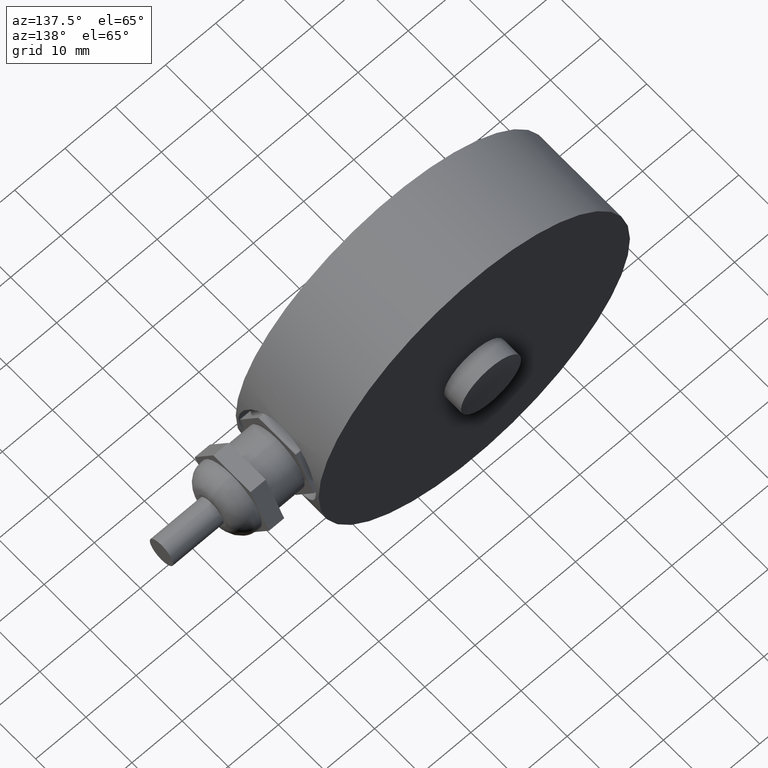
[diagram: clean part render]
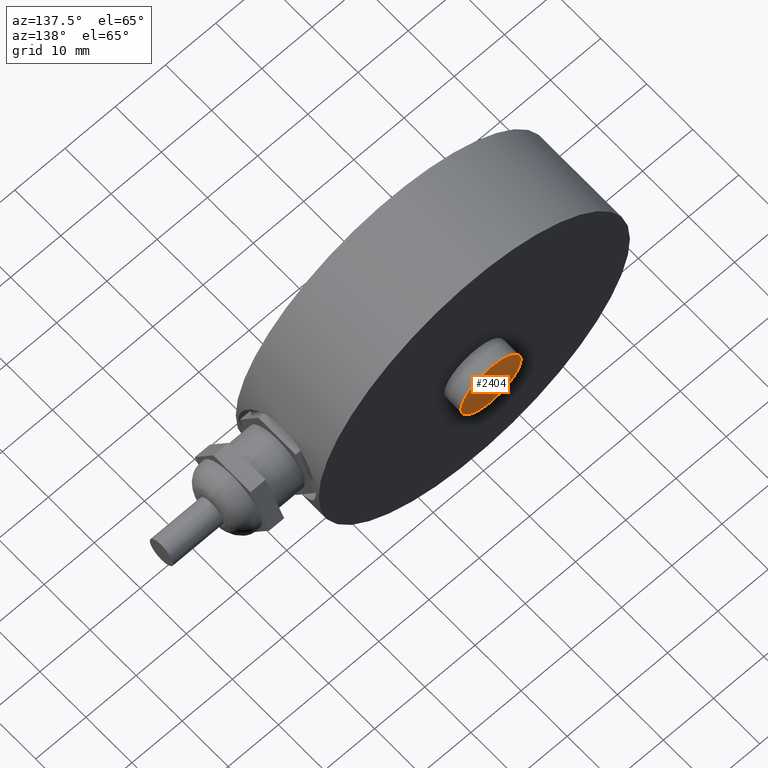
[diagram: same view with one face highlighted and labeled with its STEP entity id]
A machine part, auxiliary view. The second image highlights one B-rep face of the part: STEP entity #2404.
In plain terms, the highlighted spherical surface has radius 50 mm.
Its self-contained STEP definition (entity closure, byte-faithful):
#15=SPHERICAL_SURFACE('',#2595,50.);
#391=FACE_OUTER_BOUND('',#540,.T.);
#540=EDGE_LOOP('',(#2129,#2130));
#861=CIRCLE('',#2596,6.);
#862=CIRCLE('',#2597,6.);
#1091=VERTEX_POINT('',#9407);
#1092=VERTEX_POINT('',#9408);
#1445=EDGE_CURVE('',#1091,#1092,#861,.T.);
#1446=EDGE_CURVE('',#1092,#1091,#862,.T.);
#2129=ORIENTED_EDGE('',*,*,#1445,.F.);
#2130=ORIENTED_EDGE('',*,*,#1446,.F.);
#2404=ADVANCED_FACE('',(#391),#15,.T.);
#2595=AXIS2_PLACEMENT_3D('',#9406,#3083,#3084);
#2596=AXIS2_PLACEMENT_3D('',#9409,#3085,#3086);
#2597=AXIS2_PLACEMENT_3D('',#9410,#3087,#3088);
#3083=DIRECTION('center_axis',(6.12323399573677E-17,0.,1.));
#3084=DIRECTION('ref_axis',(1.,0.,0.));
#3085=DIRECTION('center_axis',(0.,-1.,0.));
#3086=DIRECTION('ref_axis',(1.,0.,0.));
#3087=DIRECTION('center_axis',(0.,-1.,0.));
#3088=DIRECTION('ref_axis',(1.,0.,0.));
#9406=CARTESIAN_POINT('Origin',(2.81668763803891E-15,-28.,0.));
#9407=CARTESIAN_POINT('',(6.,21.6386945839634,0.));
#9408=CARTESIAN_POINT('',(-6.,21.6386945839634,-7.34788079488412E-16));
#9409=CARTESIAN_POINT('Origin',(0.,21.6386945839634,0.));
#9410=CARTESIAN_POINT('Origin',(0.,21.6386945839634,0.));